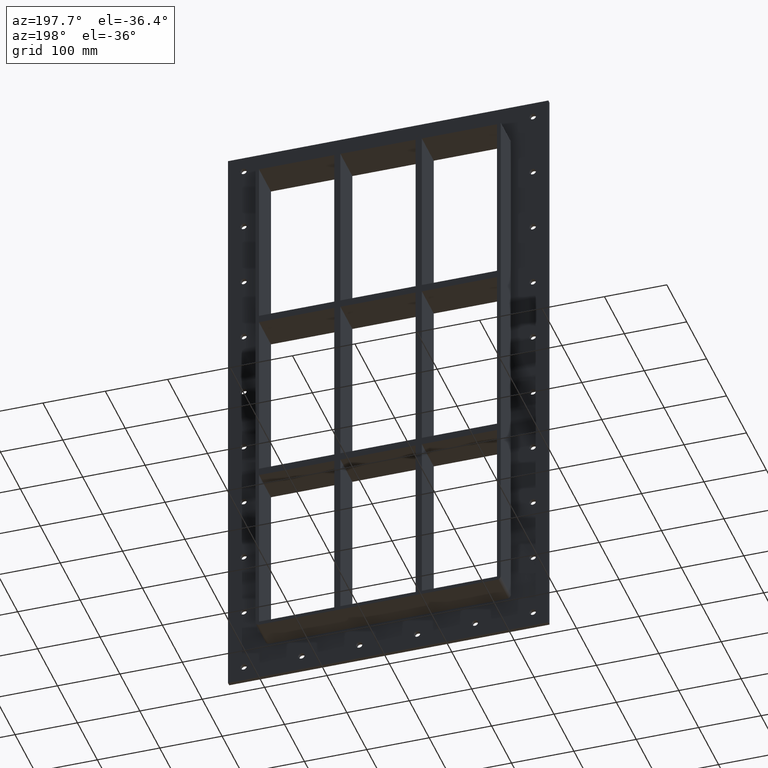
[diagram: clean part render]
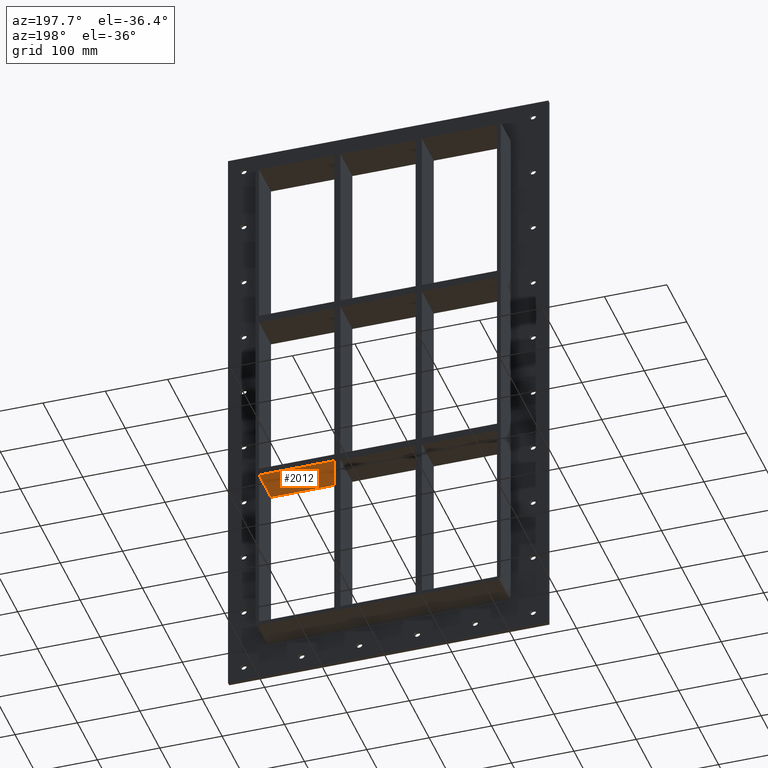
[diagram: same view with one face highlighted and labeled with its STEP entity id]
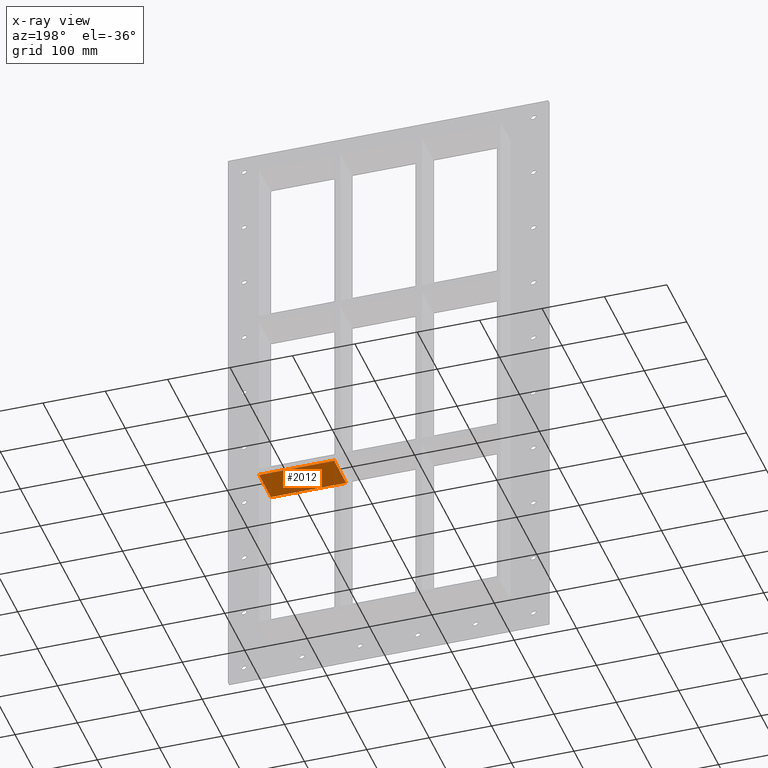
[diagram: x-ray of the same camera — body ghosted, the highlighted face saturated]
A machine part, auxiliary view. The second image highlights one B-rep face of the part: STEP entity #2012.
The next image is the same camera in x-ray: the body ghosted, the highlighted face saturated — about 0% of this face is hidden behind the body in this view.
In plain terms, the highlighted planar face has unit normal (0, 0, -1).
Its self-contained STEP definition (entity closure, byte-faithful):
#1587=CARTESIAN_POINT('',(190.74999999999821,57.0,-151.00000000000929));
#1588=VERTEX_POINT('',#1587);
#1595=CARTESIAN_POINT('',(70.250000000003638,57.0,-151.00000000000932));
#1596=VERTEX_POINT('',#1595);
#1597=CARTESIAN_POINT('',(190.74999999999818,57.0,-151.00000000000929));
#1598=DIRECTION('',(-1.0,0.0,0.0));
#1599=VECTOR('',#1598,120.49999999999454);
#1600=LINE('',#1597,#1599);
#1601=EDGE_CURVE('',#1588,#1596,#1600,.T.);
#1696=CARTESIAN_POINT('',(70.250000000003638,-3.0,-151.00000000000932));
#1697=VERTEX_POINT('',#1696);
#1698=CARTESIAN_POINT('',(70.250000000003638,-3.0,-151.00000000000929));
#1699=DIRECTION('',(0.0,1.0,0.0));
#1700=VECTOR('',#1699,60.0);
#1701=LINE('',#1698,#1700);
#1702=EDGE_CURVE('',#1697,#1596,#1701,.T.);
#1944=CARTESIAN_POINT('',(190.74999999999818,-3.0,-151.00000000000929));
#1945=VERTEX_POINT('',#1944);
#1946=CARTESIAN_POINT('',(190.74999999999818,-3.0,-151.00000000000929));
#1947=DIRECTION('',(-1.0,0.0,0.0));
#1948=VECTOR('',#1947,120.49999999999454);
#1949=LINE('',#1946,#1948);
#1950=EDGE_CURVE('',#1945,#1697,#1949,.T.);
#1996=CARTESIAN_POINT('',(190.74999999999818,-3.0,-151.00000000000929));
#1997=DIRECTION('',(0.0,0.0,-1.0));
#1998=DIRECTION('',(-1.0,0.0,0.0));
#1999=AXIS2_PLACEMENT_3D('',#1996,#1997,#1998);
#2000=PLANE('',#1999);
#2001=ORIENTED_EDGE('',*,*,#1702,.T.);
#2002=ORIENTED_EDGE('',*,*,#1601,.F.);
#2003=CARTESIAN_POINT('',(190.75000000000003,-3.0,-151.00000000000927));
#2004=DIRECTION('',(0.0,1.0,0.0));
#2005=VECTOR('',#2004,60.000000000000007);
#2006=LINE('',#2003,#2005);
#2007=EDGE_CURVE('',#1945,#1588,#2006,.T.);
#2008=ORIENTED_EDGE('',*,*,#2007,.F.);
#2009=ORIENTED_EDGE('',*,*,#1950,.T.);
#2010=EDGE_LOOP('',(#2001,#2002,#2008,#2009));
#2011=FACE_OUTER_BOUND('',#2010,.T.);
#2012=ADVANCED_FACE('',(#2011),#2000,.T.);